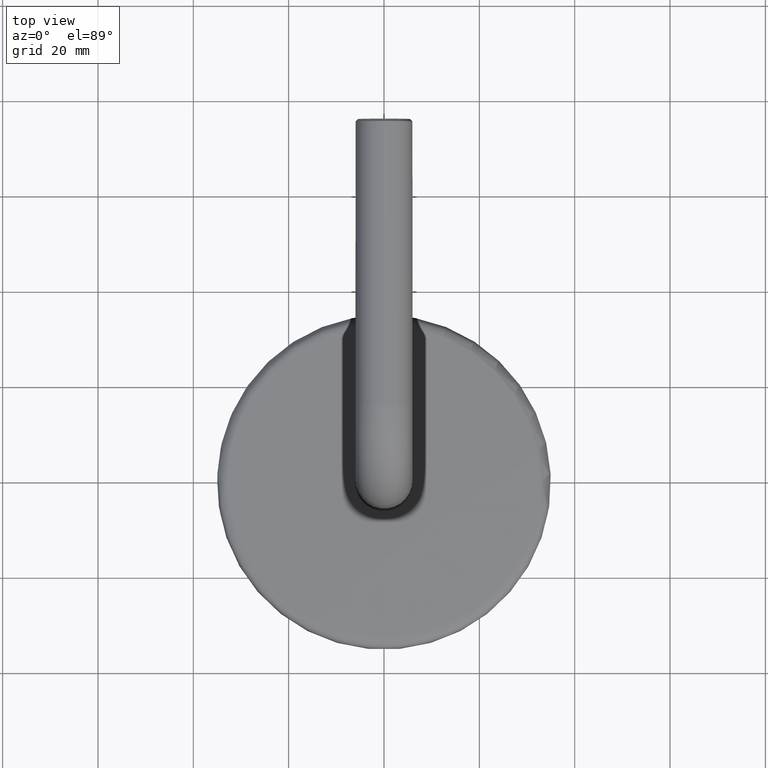
[diagram: clean part render]
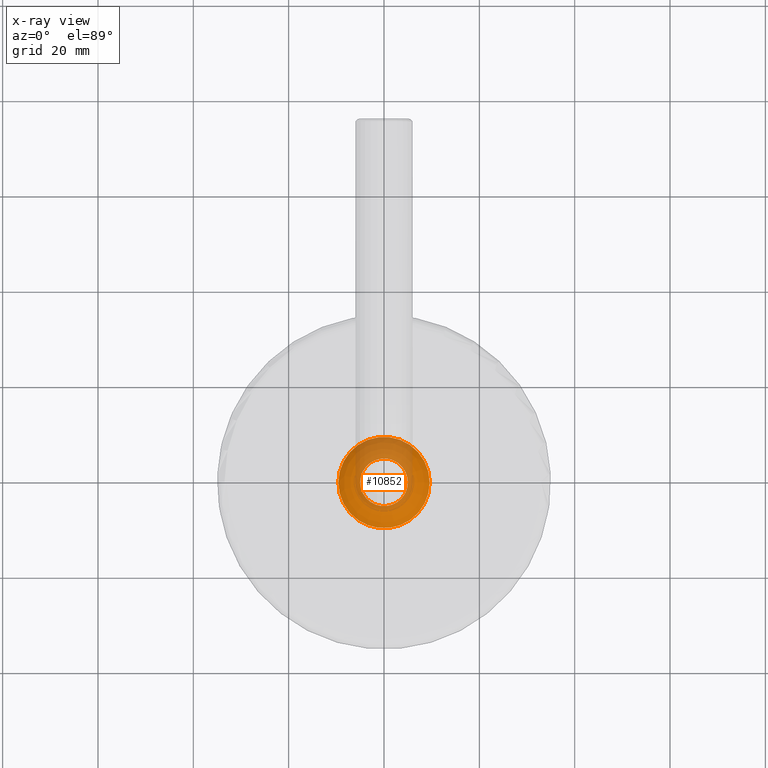
[diagram: x-ray — body ghosted, one internal face saturated and labeled with its STEP entity id]
A machine part, top view, then the same camera in x-ray: the body is ghosted and one INTERNAL B-rep face — a face not visible from any outside direction — is saturated and labeled: STEP entity #10852.
In plain terms, the highlighted toroidal blend (fillet) surface has major radius 4.2205 mm and minor (blend) radius 6.8 mm.
Its self-contained STEP definition (entity closure, byte-faithful):
#1447 = CARTESIAN_POINT ( 'NONE',  ( -9.574806341172475800, -2.492328246382506600E-029, -2.191780821917760600 ) ) ;
#1457 = VERTEX_POINT ( 'NONE', #1447 ) ;
#2075 = ORIENTED_EDGE ( 'NONE', *, *, #4363, .T. ) ;
#2185 = DIRECTION ( 'NONE',  ( -1.000000000000000000, -2.761013168273535000E-030, -3.471416353821137800E-030 ) ) ;
#2240 = EDGE_LOOP ( 'NONE', ( #2075 ) ) ;
#2251 = CARTESIAN_POINT ( 'NONE',  ( 7.608583789196836300E-030, 1.512883927821088500E-030, -2.191780821917760600 ) ) ;
#3015 = VERTEX_POINT ( 'NONE', #7835 ) ;
#3455 = DIRECTION ( 'NONE',  ( 3.471416353821137800E-030, 6.902532920683880400E-031, -1.000000000000000000 ) ) ;
#4036 = CARTESIAN_POINT ( 'NONE',  ( 1.650717570325664800E-029, 3.282271905927446200E-030, -4.755170230469913900 ) ) ;
#4140 = DIRECTION ( 'NONE',  ( 1.000000000000000000, 2.761013168273535400E-030, 0.0000000000000000000 ) ) ;
#4363 = EDGE_CURVE ( 'NONE', #1457, #1457, #12865, .T. ) ;
#5865 = CARTESIAN_POINT ( 'NONE',  ( -6.942832707642100500E-030, -1.380506584136743000E-030, 1.999999999999950900 ) ) ;
#5998 = EDGE_LOOP ( 'NONE', ( #14918 ) ) ;
#6033 = DIRECTION ( 'NONE',  ( -1.000000000000000000, -2.761013168273535400E-030, 0.0000000000000000000 ) ) ;
#6457 = FACE_OUTER_BOUND ( 'NONE', #2240, .T. ) ;
#6509 = AXIS2_PLACEMENT_3D ( 'NONE', #5865, #10686, #2185 ) ;
#7405 = FACE_OUTER_BOUND ( 'NONE', #5998, .T. ) ;
#7835 = CARTESIAN_POINT ( 'NONE',  ( 4.999999999999937800, 1.708733774729495000E-029, -4.755170230469913900 ) ) ;
#10662 = TOROIDAL_SURFACE ( 'NONE', #6509, 4.220464781185778100, 6.799999999999999800 ) ;
#10686 = DIRECTION ( 'NONE',  ( 3.471416353821137800E-030, 6.902532920683880400E-031, -1.000000000000000000 ) ) ;
#10852 = ADVANCED_FACE ( 'NONE', ( #7405, #6457 ), #10662, .T. ) ;
#11558 = AXIS2_PLACEMENT_3D ( 'NONE', #2251, #3455, #6033 ) ;
#12865 = CIRCLE ( 'NONE', #11558, 9.574806341172475800 ) ;
#12886 = CIRCLE ( 'NONE', #15671, 4.999999999999937800 ) ;
#14799 = EDGE_CURVE ( 'NONE', #3015, #3015, #12886, .T. ) ;
#14918 = ORIENTED_EDGE ( 'NONE', *, *, #14799, .T. ) ;
#15097 = DIRECTION ( 'NONE',  ( -3.471416353821137800E-030, -6.902532920683880400E-031, 1.000000000000000000 ) ) ;
#15671 = AXIS2_PLACEMENT_3D ( 'NONE', #4036, #15097, #4140 ) ;